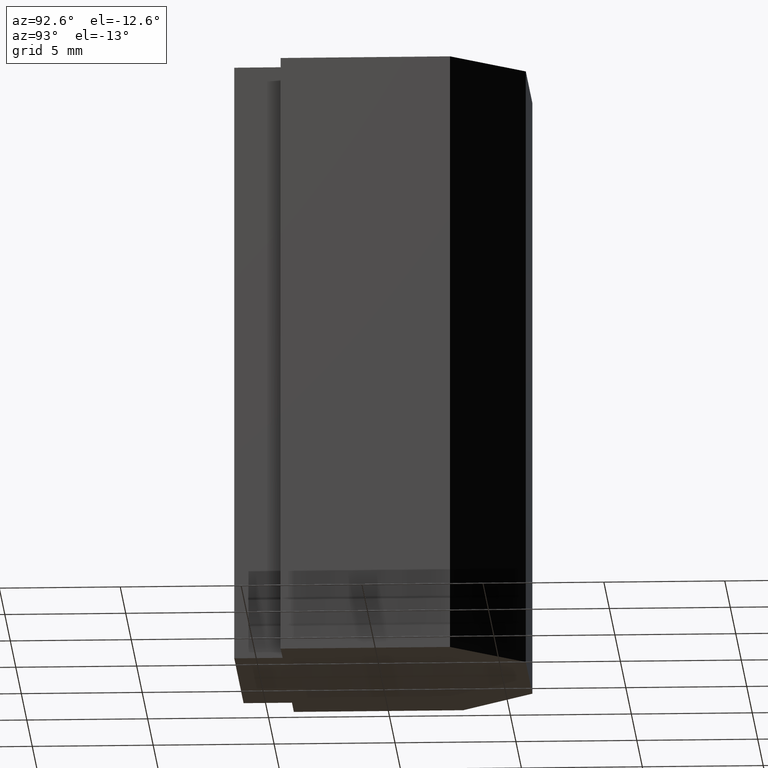
[diagram: clean part render]
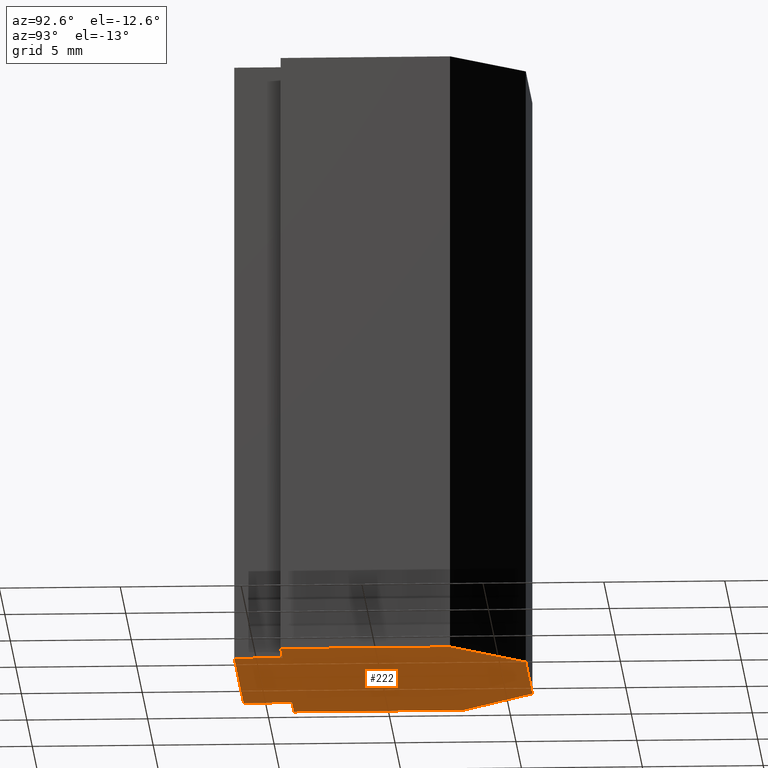
[diagram: same view with one face highlighted and labeled with its STEP entity id]
A machine part, auxiliary view. The second image highlights one B-rep face of the part: STEP entity #222.
In plain terms, the highlighted planar face has unit normal (0, 0, 1).
Its self-contained STEP definition (entity closure, byte-faithful):
#16=FACE_OUTER_BOUND('',#28,.T.);
#28=EDGE_LOOP('',(#150,#151,#152,#153,#154,#155,#156,#157,#158,#159));
#40=LINE('',#329,#70);
#41=LINE('',#331,#71);
#42=LINE('',#333,#72);
#43=LINE('',#335,#73);
#44=LINE('',#337,#74);
#45=LINE('',#339,#75);
#46=LINE('',#341,#76);
#47=LINE('',#343,#77);
#48=LINE('',#345,#78);
#49=LINE('',#346,#79);
#70=VECTOR('',#273,10.);
#71=VECTOR('',#274,10.);
#72=VECTOR('',#275,10.);
#73=VECTOR('',#276,10.);
#74=VECTOR('',#277,10.);
#75=VECTOR('',#278,10.);
#76=VECTOR('',#279,10.);
#77=VECTOR('',#280,10.);
#78=VECTOR('',#281,10.);
#79=VECTOR('',#282,10.);
#100=VERTEX_POINT('',#327);
#101=VERTEX_POINT('',#328);
#102=VERTEX_POINT('',#330);
#103=VERTEX_POINT('',#332);
#104=VERTEX_POINT('',#334);
#105=VERTEX_POINT('',#336);
#106=VERTEX_POINT('',#338);
#107=VERTEX_POINT('',#340);
#108=VERTEX_POINT('',#342);
#109=VERTEX_POINT('',#344);
#120=EDGE_CURVE('',#100,#101,#40,.T.);
#121=EDGE_CURVE('',#102,#100,#41,.T.);
#122=EDGE_CURVE('',#103,#102,#42,.T.);
#123=EDGE_CURVE('',#104,#103,#43,.T.);
#124=EDGE_CURVE('',#105,#104,#44,.T.);
#125=EDGE_CURVE('',#106,#105,#45,.T.);
#126=EDGE_CURVE('',#107,#106,#46,.T.);
#127=EDGE_CURVE('',#108,#107,#47,.T.);
#128=EDGE_CURVE('',#109,#108,#48,.T.);
#129=EDGE_CURVE('',#101,#109,#49,.T.);
#150=ORIENTED_EDGE('',*,*,#120,.F.);
#151=ORIENTED_EDGE('',*,*,#121,.F.);
#152=ORIENTED_EDGE('',*,*,#122,.F.);
#153=ORIENTED_EDGE('',*,*,#123,.F.);
#154=ORIENTED_EDGE('',*,*,#124,.F.);
#155=ORIENTED_EDGE('',*,*,#125,.F.);
#156=ORIENTED_EDGE('',*,*,#126,.F.);
#157=ORIENTED_EDGE('',*,*,#127,.F.);
#158=ORIENTED_EDGE('',*,*,#128,.F.);
#159=ORIENTED_EDGE('',*,*,#129,.F.);
#210=PLANE('',#257);
#222=ADVANCED_FACE('',(#16),#210,.F.);
#257=AXIS2_PLACEMENT_3D('',#326,#271,#272);
#271=DIRECTION('center_axis',(0.,0.,1.));
#272=DIRECTION('ref_axis',(1.,0.,0.));
#273=DIRECTION('',(0.,1.,0.));
#274=DIRECTION('',(1.,0.,0.));
#275=DIRECTION('',(2.77555756156289E-16,1.,0.));
#276=DIRECTION('',(1.,0.,0.));
#277=DIRECTION('',(2.77555756156289E-16,-1.,0.));
#278=DIRECTION('',(1.,0.,0.));
#279=DIRECTION('',(0.,-1.,0.));
#280=DIRECTION('',(-0.707106781186548,-0.707106781186548,0.));
#281=DIRECTION('',(-1.,0.,0.));
#282=DIRECTION('',(-0.707106781186548,0.707106781186548,0.));
#326=CARTESIAN_POINT('Origin',(-2.77555756156289E-16,-0.400497271581692,
-12.5));
#327=CARTESIAN_POINT('',(6.,-4.,-12.5));
#328=CARTESIAN_POINT('',(6.,3.,-12.5));
#329=CARTESIAN_POINT('',(6.,3.,-12.5));
#330=CARTESIAN_POINT('',(4.25,-4.,-12.5));
#331=CARTESIAN_POINT('',(6.,-4.,-12.5));
#332=CARTESIAN_POINT('',(4.25,-6.,-12.5));
#333=CARTESIAN_POINT('',(4.25,-4.,-12.5));
#334=CARTESIAN_POINT('',(-4.25,-6.,-12.5));
#335=CARTESIAN_POINT('',(4.25,-6.,-12.5));
#336=CARTESIAN_POINT('',(-4.25,-4.,-12.5));
#337=CARTESIAN_POINT('',(-4.25,-6.,-12.5));
#338=CARTESIAN_POINT('',(-6.,-4.,-12.5));
#339=CARTESIAN_POINT('',(-4.25,-4.,-12.5));
#340=CARTESIAN_POINT('',(-6.,3.,-12.5));
#341=CARTESIAN_POINT('',(-6.,-4.,-12.5));
#342=CARTESIAN_POINT('',(-3.,6.00000000000001,-12.5));
#343=CARTESIAN_POINT('',(-6.,3.,-12.5));
#344=CARTESIAN_POINT('',(3.,6.00000000000001,-12.5));
#345=CARTESIAN_POINT('',(-3.,6.00000000000001,-12.5));
#346=CARTESIAN_POINT('',(3.,6.00000000000001,-12.5));